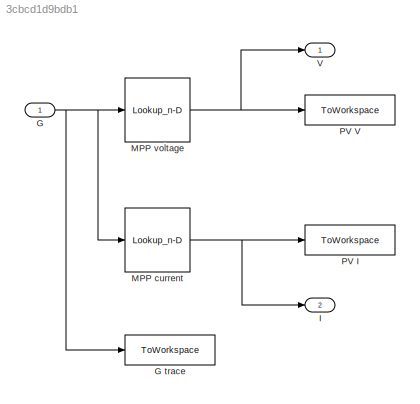
MODEL slx_3cbcd1d9bdb1
KIND model
CONFIG AbsTol = auto
CONFIG EnableMultiTasking = off
CONFIG FixedStep = auto
CONFIG MaxStep = auto
CONFIG MinStep = auto
CONFIG RelTol = 1e-3
CONFIG SampleTimeConstraint = Unconstrained
CONFIG SolverName = VariableStepAuto
CONFIG StartTime = 0.0
CONFIG StopTime = 10.0
BLOCK [Inport] G
BLOCK [ToWorkspace] G trace
  FixptAsFi = on
  MaxDataPoints = inf
  Ports = [1]
  SampleTime = -1
  SaveFormat = Timeseries
  VariableName = Gcurve
BLOCK [Outport] I
  Port = 2
BLOCK [Lookup_n-D] MPP current
  BreakpointsForDimension1 = G
  InputPortMap = u0
  InternalRulePriority = Speed
  NumberOfTableDimensions = 1
  Ports = [1, 1]
  RndMeth = Simplest
  Table = I
BLOCK [Lookup_n-D] MPP voltage
  BreakpointsForDimension1 = G
  InputPortMap = u0
  InternalRulePriority = Speed
  NumberOfTableDimensions = 1
  Ports = [1, 1]
  RndMeth = Simplest
  Table = V
BLOCK [ToWorkspace] PV I
  FixptAsFi = on
  MaxDataPoints = inf
  Ports = [1]
  SampleTime = -1
  SaveFormat = Timeseries
  VariableName = PVcurrent
BLOCK [ToWorkspace] PV V
  FixptAsFi = on
  MaxDataPoints = inf
  Ports = [1]
  SampleTime = -1
  SaveFormat = Timeseries
  VariableName = PVvoltage
BLOCK [Outport] V
NET G:1 -> G trace:1, MPP current:1, MPP voltage:1
NET MPP current:1 -> I:1, PV I:1
NET MPP voltage:1 -> PV V:1, V:1
note: NET lines group one-source signal fan-out (src -> all destinations, sorted); 1:1 wires keep LINE
